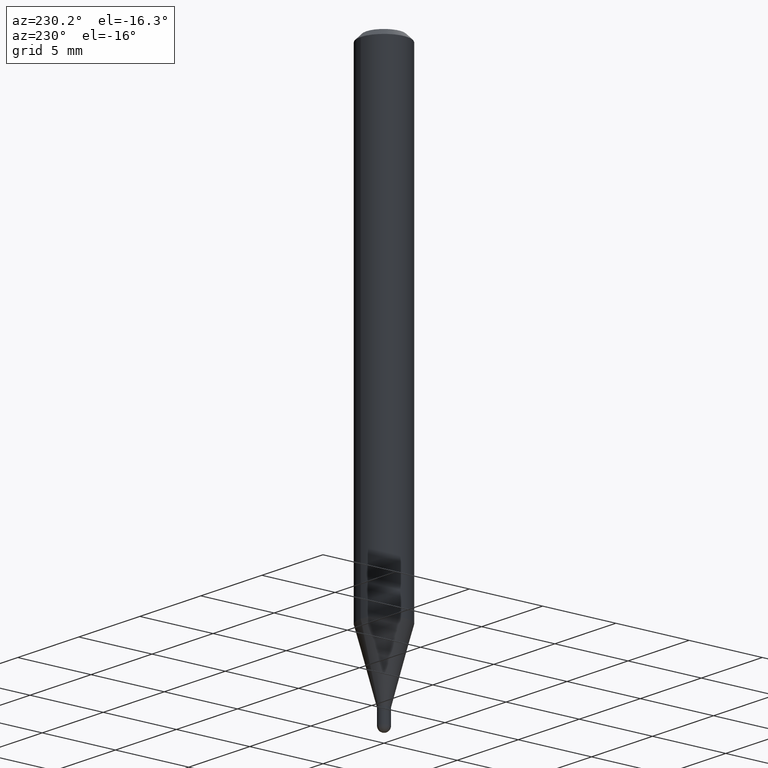
[diagram: clean part render]
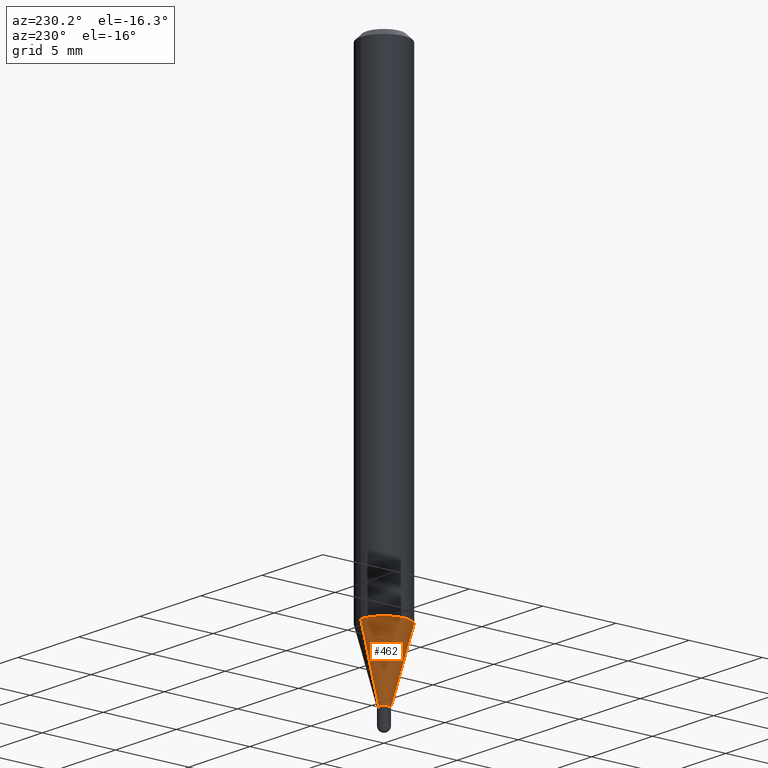
[diagram: same view with one face highlighted and labeled with its STEP entity id]
A machine part, auxiliary view. The second image highlights one B-rep face of the part: STEP entity #462.
In plain terms, the highlighted conical surface has half-angle 15 deg.
Its self-contained STEP definition (entity closure, byte-faithful):
#17 = CARTESIAN_POINT ( 'NONE',  ( 3.536166030752262621E-29, -5.048656042738642851E-15, -1.445999999999999730 ) ) ;
#35 = AXIS2_PLACEMENT_3D ( 'NONE', #386, #499, #144 ) ;
#36 = LINE ( 'NONE', #400, #267 ) ;
#45 = VECTOR ( 'NONE', #473, 39.37007874015748854 ) ;
#63 = CIRCLE ( 'NONE', #275, 0.06250000000000000000 ) ;
#85 = CARTESIAN_POINT ( 'NONE',  ( 2.735589532676716016E-16, 0.01449999999999487463, -1.445999999999999730 ) ) ;
#88 = ORIENTED_EDGE ( 'NONE', *, *, #337, .F. ) ;
#90 = DIRECTION ( 'NONE',  ( -2.445481349067954687E-29, 3.491463376721053422E-15, 1.000000000000000000 ) ) ;
#98 = EDGE_CURVE ( 'NONE', #486, #452, #403, .T. ) ;
#100 = ORIENTED_EDGE ( 'NONE', *, *, #233, .F. ) ;
#126 = CONICAL_SURFACE ( 'NONE', #420, 0.01449999999999992441, 0.2617993877991505181 ) ;
#137 = DIRECTION ( 'NONE',  ( -2.445481349067954687E-29, 3.491463376721053422E-15, 1.000000000000000000 ) ) ;
#144 = DIRECTION ( 'NONE',  ( -6.982962677686265922E-15, -1.000000000000000000, 0.000000000000000000 ) ) ;
#153 = CARTESIAN_POINT ( 'NONE',  ( -1.012529588264149623E-16, -0.01450000000000497419, -1.445999999999999730 ) ) ;
#155 = DIRECTION ( 'NONE',  ( 1.839019923739601893E-15, 0.2588190451025252359, 0.9659258262890670910 ) ) ;
#174 = FACE_OUTER_BOUND ( 'NONE', #196, .T. ) ;
#196 = EDGE_LOOP ( 'NONE', ( #100, #318, #234, #88 ) ) ;
#207 = VERTEX_POINT ( 'NONE', #280 ) ;
#211 = VERTEX_POINT ( 'NONE', #228 ) ;
#228 = CARTESIAN_POINT ( 'NONE',  ( 4.440892098500933817E-16, 0.06249999999999555911, -1.266861561236694467 ) ) ;
#233 = EDGE_CURVE ( 'NONE', #486, #211, #36, .T. ) ;
#234 = ORIENTED_EDGE ( 'NONE', *, *, #241, .T. ) ;
#241 = EDGE_CURVE ( 'NONE', #452, #207, #320, .T. ) ;
#267 = VECTOR ( 'NONE', #155, 39.37007874015748854 ) ;
#275 = AXIS2_PLACEMENT_3D ( 'NONE', #445, #90, #323 ) ;
#280 = CARTESIAN_POINT ( 'NONE',  ( -4.364351673553606573E-16, -0.06250000000000442701, -1.266861561236694023 ) ) ;
#287 = DIRECTION ( 'NONE',  ( -6.982962677686265922E-15, -1.000000000000000000, 0.000000000000000000 ) ) ;
#294 = CARTESIAN_POINT ( 'NONE',  ( -1.012529588264149623E-16, -0.01450000000000497419, -1.445999999999999730 ) ) ;
#318 = ORIENTED_EDGE ( 'NONE', *, *, #98, .T. ) ;
#320 = LINE ( 'NONE', #153, #45 ) ;
#323 = DIRECTION ( 'NONE',  ( -6.982962677686265922E-15, -1.000000000000000000, 4.370956789862821150E-15 ) ) ;
#337 = EDGE_CURVE ( 'NONE', #211, #207, #63, .T. ) ;
#386 = CARTESIAN_POINT ( 'NONE',  ( 3.536166030752262621E-29, -5.048656042738642851E-15, -1.445999999999999730 ) ) ;
#400 = CARTESIAN_POINT ( 'NONE',  ( 1.030286966852493407E-16, 0.01449999999999487463, -1.445999999999999730 ) ) ;
#403 = CIRCLE ( 'NONE', #35, 0.01449999999999992441 ) ;
#420 = AXIS2_PLACEMENT_3D ( 'NONE', #17, #137, #287 ) ;
#445 = CARTESIAN_POINT ( 'NONE',  ( 3.098086319855446191E-29, -4.423200744433573842E-15, -1.266861561236694245 ) ) ;
#452 = VERTEX_POINT ( 'NONE', #294 ) ;
#462 = ADVANCED_FACE ( 'NONE', ( #174 ), #126, .T. ) ;
#473 = DIRECTION ( 'NONE',  ( -1.807323732225331717E-15, -0.2588190451025184080, 0.9659258262890689783 ) ) ;
#486 = VERTEX_POINT ( 'NONE', #85 ) ;
#499 = DIRECTION ( 'NONE',  ( -2.445481349067954687E-29, 3.491463376721053422E-15, 1.000000000000000000 ) ) ;